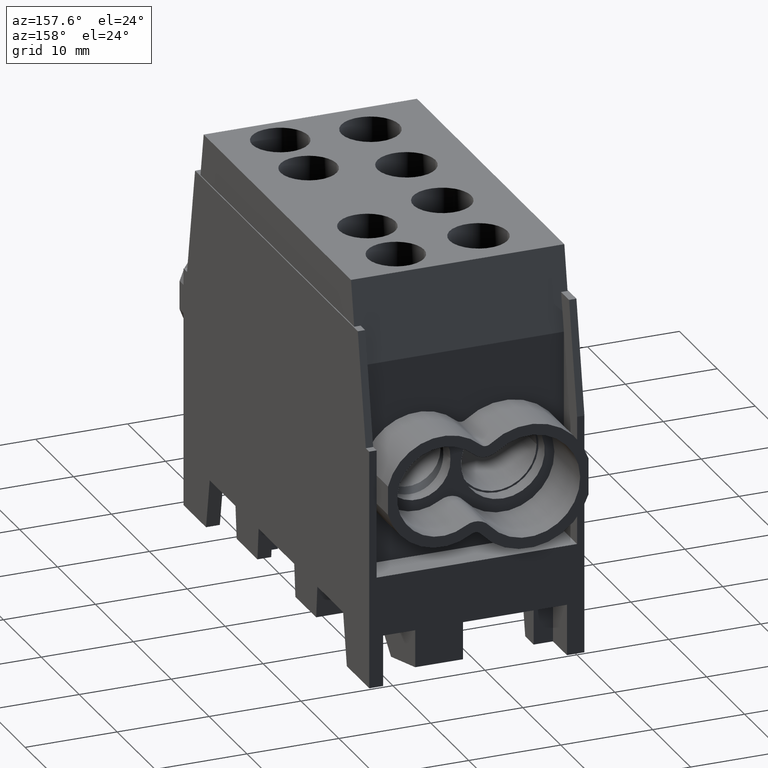
[diagram: clean part render]
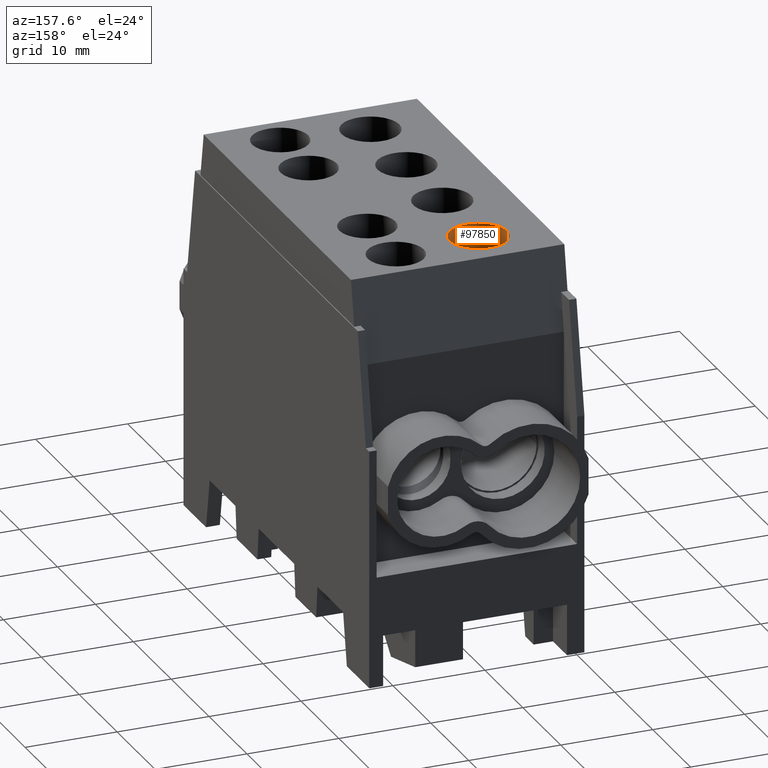
[diagram: same view with one face highlighted and labeled with its STEP entity id]
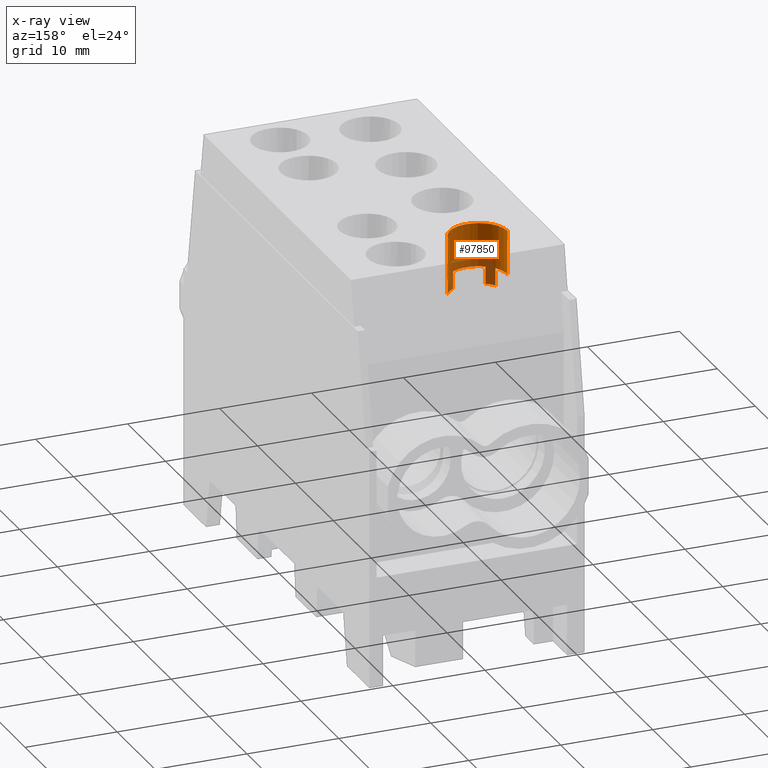
[diagram: x-ray of the same camera — body ghosted, the highlighted face saturated]
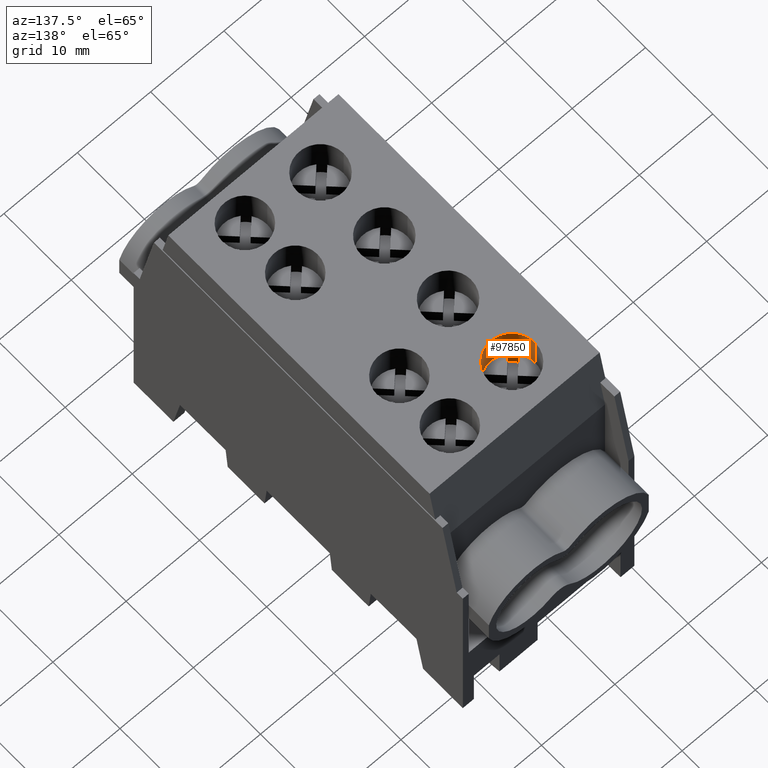
[diagram: same view with one face highlighted and labeled with its STEP entity id]
A machine part, auxiliary view. The second image highlights one B-rep face of the part: STEP entity #97850.
The next image is the same camera in x-ray: the body ghosted, the highlighted face saturated — about 26% of this face is hidden behind the body in this view.
A second angle (auxiliary view) of the same face is appended — the face is thin or edge-on in the first view.
In plain terms, the highlighted cylindrical surface (edge-blend (fillet) strip) has radius 3.15 mm, axis along (0, -0, 1).
Its self-contained STEP definition (entity closure, byte-faithful):
#34980=CARTESIAN_POINT('',(-4.4,14.25,24.55));
#34990=DIRECTION('',(0.,-1.22108605138914E-16,1.));
#35000=DIRECTION('',(1.,0.,0.));
#35010=AXIS2_PLACEMENT_3D('',#34980,#34990,#35000);
#35020=CIRCLE('',#35010,3.15);
#35030=CARTESIAN_POINT('',(-1.73333236512102,12.5732818587822,24.55));
#35040=VERTEX_POINT('',#35030);
#35050=CARTESIAN_POINT('',(-1.25,14.25,24.55));
#35060=VERTEX_POINT('',#35050);
#35070=EDGE_CURVE('',#35040,#35060,#35020,.T.);
#50680=CARTESIAN_POINT('',(-4.4,14.25,29.3));
#50690=DIRECTION('',(0.,-1.22108605138914E-16,1.));
#50700=DIRECTION('',(1.,0.,0.));
#50710=AXIS2_PLACEMENT_3D('',#50680,#50690,#50700);
#50720=CIRCLE('',#50710,3.15);
#50750=CARTESIAN_POINT('',(-7.55,14.25,29.3));
#50760=VERTEX_POINT('',#50750);
#50790=CARTESIAN_POINT('',(-1.25,14.25,29.3));
#50800=VERTEX_POINT('',#50790);
#50810=EDGE_CURVE('',#50760,#50800,#50720,.T.);
#56430=CARTESIAN_POINT('',(-1.25,14.25,29.3));
#56440=DIRECTION('',(0.,-1.22108605138914E-16,1.));
#56450=VECTOR('',#56440,1.);
#56460=LINE('',#56430,#56450);
#56470=EDGE_CURVE('',#35060,#50800,#56460,.T.);
#56970=CARTESIAN_POINT('',(-7.55,14.25,24.55));
#56980=VERTEX_POINT('',#56970);
#57010=CARTESIAN_POINT('',(-7.55,14.25,29.3));
#57020=DIRECTION('',(0.,-1.22108605138914E-16,1.));
#57030=VECTOR('',#57020,1.);
#57040=LINE('',#57010,#57030);
#57050=EDGE_CURVE('',#56980,#50760,#57040,.T.);
#62700=CARTESIAN_POINT('',(-2.72328185878219,11.583332365121,22.65));
#62710=VERTEX_POINT('',#62700);
#62740=CARTESIAN_POINT('',(-2.72328185878219,11.583332365121,22.65));
#62750=DIRECTION('',(-5.55111512312579E-17,-1.77619756370172E-16,1.));
#62760=VECTOR('',#62750,1.);
#62770=LINE('',#62740,#62760);
#62780=CARTESIAN_POINT('',(-2.72328185878219,11.583332365121,24.55));
#62790=VERTEX_POINT('',#62780);
#62800=EDGE_CURVE('',#62710,#62790,#62770,.T.);
#63170=CARTESIAN_POINT('',(-6.98207994959875,12.4457375097065,22.65));
#63180=VERTEX_POINT('',#63170);
#63210=CARTESIAN_POINT('',(-6.98207994959875,12.4457375097065,22.65));
#63220=DIRECTION('',(-5.55111512312579E-17,-1.77619756370172E-16,1.));
#63230=VECTOR('',#63220,1.);
#63240=LINE('',#63210,#63230);
#63250=CARTESIAN_POINT('',(-6.98207994959875,12.4457375097065,24.55));
#63260=VERTEX_POINT('',#63250);
#63270=EDGE_CURVE('',#63180,#63260,#63240,.T.);
#65680=CARTESIAN_POINT('',(-6.20426249029353,11.6679200504013,22.65));
#65690=VERTEX_POINT('',#65680);
#65720=CARTESIAN_POINT('',(-4.4,14.25,22.65));
#65730=DIRECTION('',(-5.55111512312579E-17,-1.77619756370172E-16,1.));
#65740=DIRECTION('',(0.707106781186548,0.707106781186547,
1.64848445669146E-16));
#65750=AXIS2_PLACEMENT_3D('',#65720,#65730,#65740);
#65760=CIRCLE('',#65750,3.15);
#65770=EDGE_CURVE('',#63180,#65690,#65760,.T.);
#65900=CARTESIAN_POINT('',(-1.73333236512102,12.5732818587822,22.65));
#65910=VERTEX_POINT('',#65900);
#65940=CARTESIAN_POINT('',(-4.4,14.25,22.65));
#65950=DIRECTION('',(-5.55111512312579E-17,-1.77619756370172E-16,1.));
#65960=DIRECTION('',(0.707106781186548,0.707106781186547,
1.64848445669146E-16));
#65970=AXIS2_PLACEMENT_3D('',#65940,#65950,#65960);
#65980=CIRCLE('',#65970,3.15);
#65990=EDGE_CURVE('',#62710,#65910,#65980,.T.);
#80780=CARTESIAN_POINT('',(-1.73333236512102,12.5732818587822,22.65));
#80790=DIRECTION('',(-5.55111512312579E-17,-1.77619756370172E-16,1.));
#80800=VECTOR('',#80790,1.);
#80810=LINE('',#80780,#80800);
#80820=EDGE_CURVE('',#65910,#35040,#80810,.T.);
#88020=CARTESIAN_POINT('',(-6.20426249029353,11.6679200504013,22.65));
#88030=DIRECTION('',(-5.55111512312579E-17,-1.77619756370172E-16,1.));
#88040=VECTOR('',#88030,1.);
#88050=LINE('',#88020,#88040);
#88060=CARTESIAN_POINT('',(-6.20426249029353,11.6679200504013,24.55));
#88070=VERTEX_POINT('',#88060);
#88080=EDGE_CURVE('',#65690,#88070,#88050,.T.);
#91510=EDGE_CURVE('',#56980,#63260,#35020,.T.);
#93270=EDGE_CURVE('',#88070,#62790,#35020,.T.);
#97660=CARTESIAN_POINT('',(-4.4,14.25,29.3));
#97670=DIRECTION('',(0.,-1.22108605138914E-16,1.));
#97680=DIRECTION('',(1.,0.,0.));
#97690=AXIS2_PLACEMENT_3D('',#97660,#97670,#97680);
#97700=CYLINDRICAL_SURFACE('',#97690,3.15);
#97710=ORIENTED_EDGE('',*,*,#50810,.T.);
#97720=ORIENTED_EDGE('',*,*,#57050,.T.);
#97730=ORIENTED_EDGE('',*,*,#91510,.F.);
#97740=ORIENTED_EDGE('',*,*,#63270,.T.);
#97750=ORIENTED_EDGE('',*,*,#65770,.F.);
#97760=ORIENTED_EDGE('',*,*,#88080,.F.);
#97770=ORIENTED_EDGE('',*,*,#93270,.F.);
#97780=ORIENTED_EDGE('',*,*,#62800,.T.);
#97790=ORIENTED_EDGE('',*,*,#65990,.F.);
#97800=ORIENTED_EDGE('',*,*,#80820,.F.);
#97810=ORIENTED_EDGE('',*,*,#35070,.F.);
#97820=ORIENTED_EDGE('',*,*,#56470,.F.);
#97830=EDGE_LOOP('',(#97820,#97810,#97800,#97790,#97780,#97770,#97760,
#97750,#97740,#97730,#97720,#97710));
#97840=FACE_OUTER_BOUND('',#97830,.T.);
#97850=ADVANCED_FACE('',(#97840),#97700,.F.);